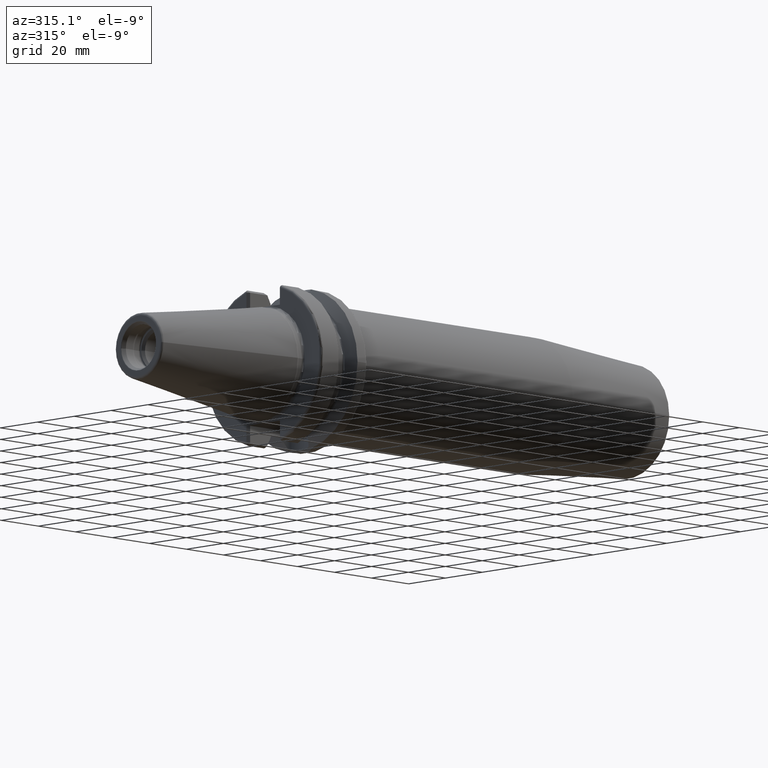
[diagram: clean part render]
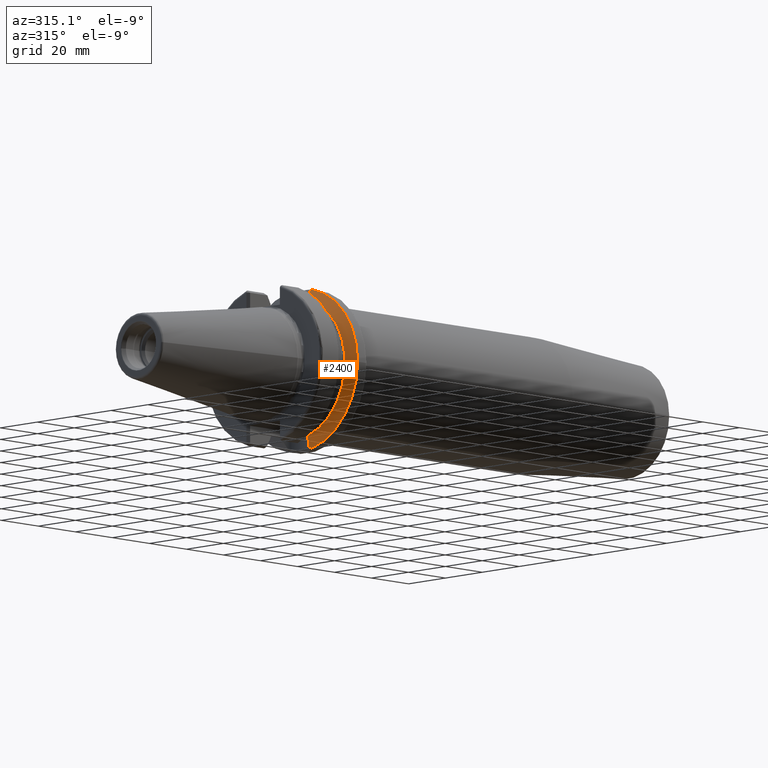
[diagram: same view with one face highlighted and labeled with its STEP entity id]
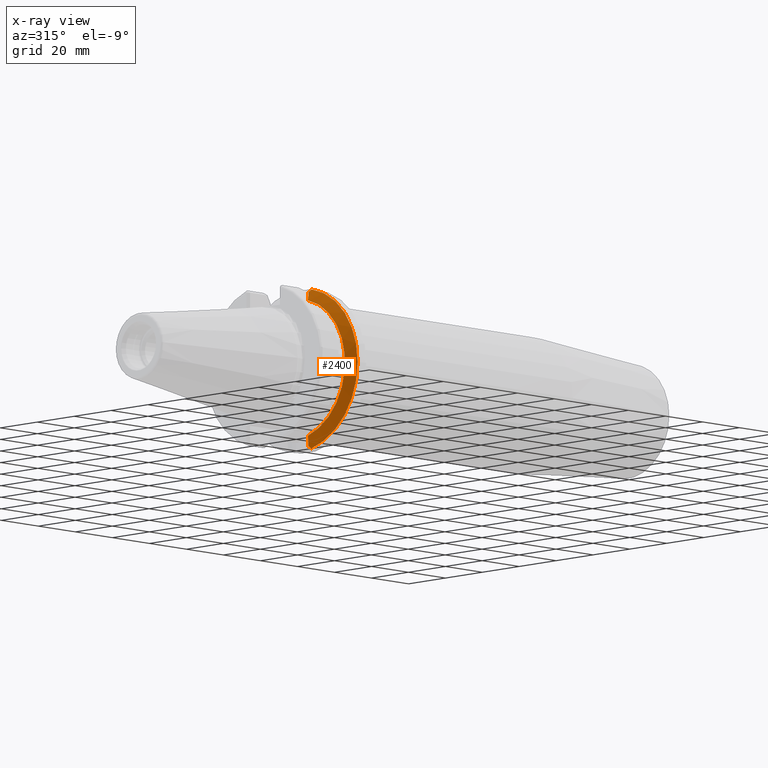
[diagram: x-ray of the same camera — body ghosted, the highlighted face saturated]
A machine part, auxiliary view. The second image highlights one B-rep face of the part: STEP entity #2400.
The next image is the same camera in x-ray: the body ghosted, the highlighted face saturated — about 0% of this face is hidden behind the body in this view.
In plain terms, the highlighted conical surface has half-angle 60 deg.
Its self-contained STEP definition (entity closure, byte-faithful):
#246=CARTESIAN_POINT('',(2.162727746897E1,0.E0,0.E0));
#247=DIRECTION('',(1.E0,0.E0,0.E0));
#248=DIRECTION('',(0.E0,-1.E0,0.E0));
#249=AXIS2_PLACEMENT_3D('',#246,#247,#248);
#390=CARTESIAN_POINT('',(2.105861410330E1,-5.538624876202E0,-2.999548227013E1));
#391=CARTESIAN_POINT('',(2.093797596673E1,-5.667212931971E0,-2.975925502394E1));
#392=CARTESIAN_POINT('',(2.069265782077E1,-5.911926204526E0,-2.927912632192E1));
#393=CARTESIAN_POINT('',(2.031281915354E1,-6.245686951976E0,-2.853656269645E1));
#394=CARTESIAN_POINT('',(1.992518154069E1,-6.546159346979E0,-2.777970817700E1));
#395=CARTESIAN_POINT('',(1.953227047098E1,-6.814802578335E0,-2.701362543231E1));
#396=CARTESIAN_POINT('',(1.926930512179E1,-6.973122571862E0,-2.650168908776E1));
#397=CARTESIAN_POINT('',(1.91375E1,-7.047603759435E0,-2.624530807186E1));
#510=CARTESIAN_POINT('',(1.91375E1,-7.047603759435E0,2.624530807186E1));
#511=CARTESIAN_POINT('',(1.929439846909E1,-6.958942680509E0,2.655049946618E1));
#512=CARTESIAN_POINT('',(1.960708097731E1,-6.768483112184E0,2.715932176805E1));
#513=CARTESIAN_POINT('',(2.007318172595E1,-6.438434899025E0,2.806848574420E1));
#514=CARTESIAN_POINT('',(2.053077179900E1,-6.062239171320E0,2.896247872395E1));
#515=CARTESIAN_POINT('',(2.082597009394E1,-5.780364268794E0,2.954002310797E1));
#516=CARTESIAN_POINT('',(2.097101986641E1,-5.630536201239E0,2.982398115757E1));
#768=CARTESIAN_POINT('',(1.91375E1,0.E0,0.E0));
#769=DIRECTION('',(-1.E0,0.E0,0.E0));
#770=DIRECTION('',(0.E0,-2.593406914876E-1,-9.657859005694E-1));
#771=AXIS2_PLACEMENT_3D('',#768,#769,#770);
#773=CARTESIAN_POINT('',(2.162727746897E1,-6.376922817779E0,-3.083500464774E1));
#774=CARTESIAN_POINT('',(2.156218909379E1,-6.282140745244E0,-3.073948435803E1));
#775=CARTESIAN_POINT('',(2.143328374119E1,-6.093677896303E0,-3.054993954761E1));
#776=CARTESIAN_POINT('',(2.124372162968E1,-5.814243469633E0,-3.027008547410E1));
#777=CARTESIAN_POINT('',(2.111989421200E1,-5.630139092100E0,-3.008651882343E1));
#778=CARTESIAN_POINT('',(2.105861410330E1,-5.538624876202E0,-2.999548227013E1));
#797=CARTESIAN_POINT('',(2.162727746897E1,0.E0,0.E0));
#798=DIRECTION('',(1.E0,0.E0,0.E0));
#799=DIRECTION('',(0.E0,-2.095835969751E-1,9.777907321503E-1));
#800=AXIS2_PLACEMENT_3D('',#797,#798,#799);
#957=CARTESIAN_POINT('',(2.097101986641E1,-5.630536201239E0,2.982398115757E1));
#958=CARTESIAN_POINT('',(2.104137563571E1,-5.736016200038E0,2.992807979955E1));
#959=CARTESIAN_POINT('',(2.118379229094E1,-5.948393440019E0,3.013829960430E1));
#960=CARTESIAN_POINT('',(2.140255866426E1,-6.271300885570E0,3.045972523365E1));
#961=CARTESIAN_POINT('',(2.155180188305E1,-6.489453954811E0,3.067802584122E1));
#962=CARTESIAN_POINT('',(2.162727746897E1,-6.599263509754E0,3.078818567858E1));
#1214=CARTESIAN_POINT('',(1.91375E1,-7.047603759435E0,-2.624530807186E1));
#1215=CARTESIAN_POINT('',(1.91375E1,-7.047603759435E0,2.624530807186E1));
#1216=VERTEX_POINT('',#1214);
#1217=VERTEX_POINT('',#1215);
#1230=CARTESIAN_POINT('',(2.162727746897E1,-3.14875E1,0.E0));
#1231=CARTESIAN_POINT('',(2.162727746897E1,-6.376922817779E0,
-3.083500464774E1));
#1232=VERTEX_POINT('',#1230);
#1233=VERTEX_POINT('',#1231);
#1238=CARTESIAN_POINT('',(2.162727746897E1,-6.599263509754E0,3.078818567858E1));
#1239=VERTEX_POINT('',#1238);
#1330=VERTEX_POINT('',#516);
#1338=VERTEX_POINT('',#390);
#2383=CARTESIAN_POINT('',(2.038238873448E1,0.E0,0.E0));
#2384=DIRECTION('',(1.E0,0.E0,0.E0));
#2385=DIRECTION('',(0.E0,-1.E0,0.E0));
#2386=AXIS2_PLACEMENT_3D('',#2383,#2384,#2385);
#2387=CONICAL_SURFACE('',#2386,2.933128946210E1,6.E1);
#2389=ORIENTED_EDGE('',*,*,#2388,.T.);
#2390=ORIENTED_EDGE('',*,*,#1755,.T.);
#2392=ORIENTED_EDGE('',*,*,#2391,.T.);
#2393=ORIENTED_EDGE('',*,*,#1878,.T.);
#2394=ORIENTED_EDGE('',*,*,#1923,.T.);
#2395=ORIENTED_EDGE('',*,*,#1974,.T.);
#2397=ORIENTED_EDGE('',*,*,#2396,.T.);
#2398=EDGE_LOOP('',(#2389,#2390,#2392,#2393,#2394,#2395,#2397));
#2399=FACE_OUTER_BOUND('',#2398,.F.);
#2400=ADVANCED_FACE('',(#2399),#2387,.T.);
#250=CIRCLE('',#249,3.14875E1);
#398=B_SPLINE_CURVE_WITH_KNOTS('',3,(#390,#391,#392,#393,#394,#395,#396,#397),
.UNSPECIFIED.,.F.,.F.,(4,1,1,1,1,4),(0.E0,2.E-1,4.E-1,6.E-1,8.E-1,1.E0),
.UNSPECIFIED.);
#517=B_SPLINE_CURVE_WITH_KNOTS('',3,(#510,#511,#512,#513,#514,#515,#516),
.UNSPECIFIED.,.F.,.F.,(4,1,1,1,4),(0.E0,2.5E-1,5.E-1,7.5E-1,1.E0),
.UNSPECIFIED.);
#772=CIRCLE('',#771,2.717507892421E1);
#779=B_SPLINE_CURVE_WITH_KNOTS('',3,(#773,#774,#775,#776,#777,#778),
.UNSPECIFIED.,.F.,.F.,(4,1,1,4),(0.E0,3.333333333333E-1,6.666666666667E-1,1.E0),
.UNSPECIFIED.);
#801=CIRCLE('',#800,3.14875E1);
#963=B_SPLINE_CURVE_WITH_KNOTS('',3,(#957,#958,#959,#960,#961,#962),
.UNSPECIFIED.,.F.,.F.,(4,1,1,4),(0.E0,3.333333333333E-1,6.666666666667E-1,1.E0),
.UNSPECIFIED.);
#1755=EDGE_CURVE('',#1232,#1233,#250,.T.);
#1878=EDGE_CURVE('',#1338,#1216,#398,.T.);
#1923=EDGE_CURVE('',#1216,#1217,#772,.T.);
#1974=EDGE_CURVE('',#1217,#1330,#517,.T.);
#2388=EDGE_CURVE('',#1239,#1232,#801,.T.);
#2391=EDGE_CURVE('',#1233,#1338,#779,.T.);
#2396=EDGE_CURVE('',#1330,#1239,#963,.T.);